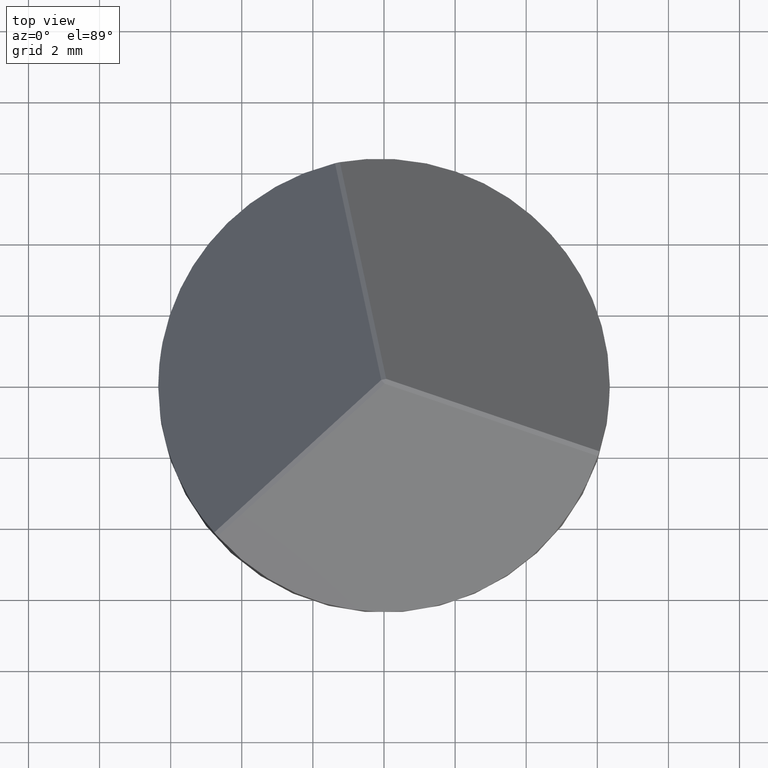
[diagram: clean part render]
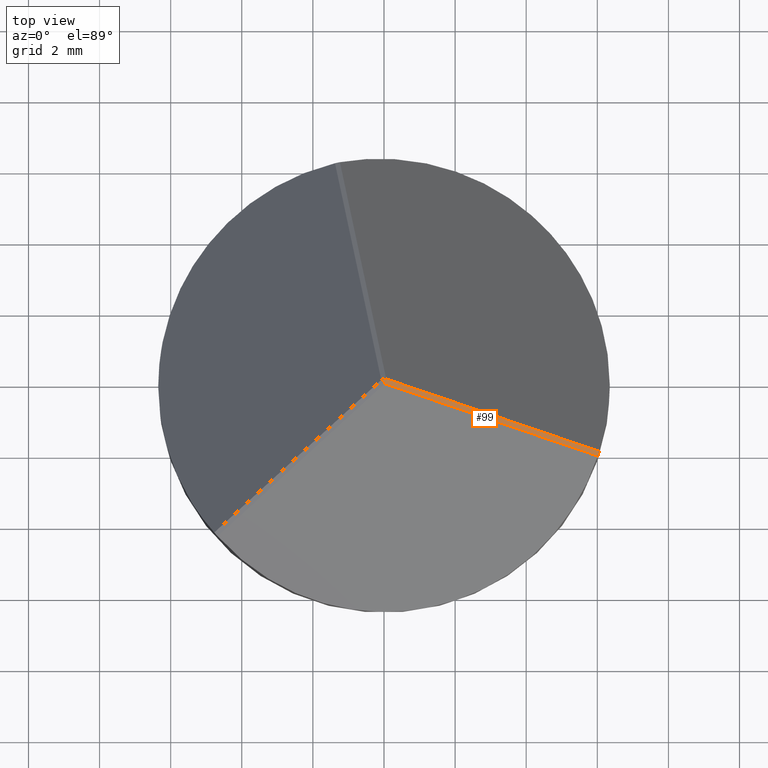
[diagram: same view with one face highlighted and labeled with its STEP entity id]
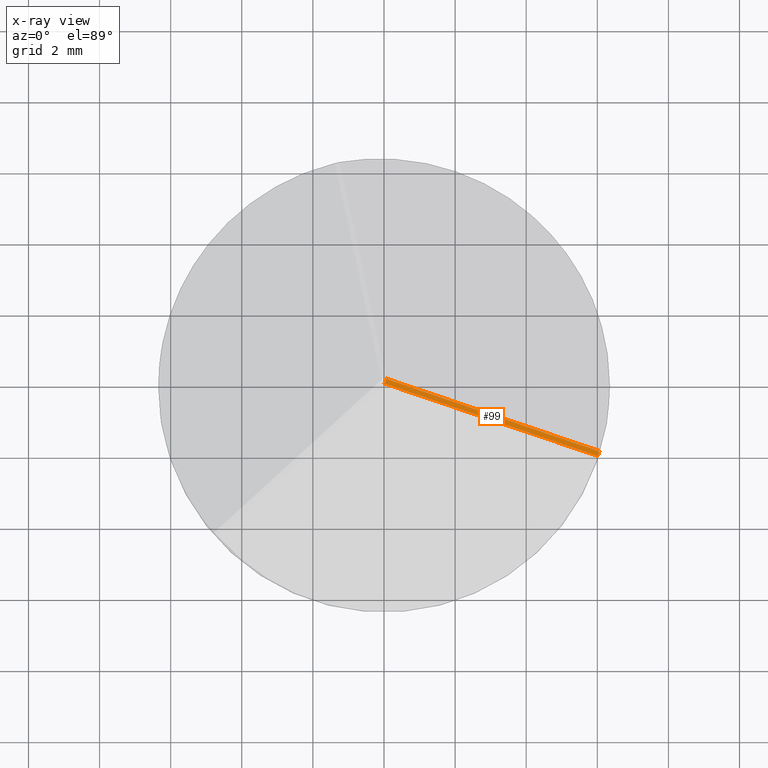
[diagram: x-ray of the same camera — body ghosted, the highlighted face saturated]
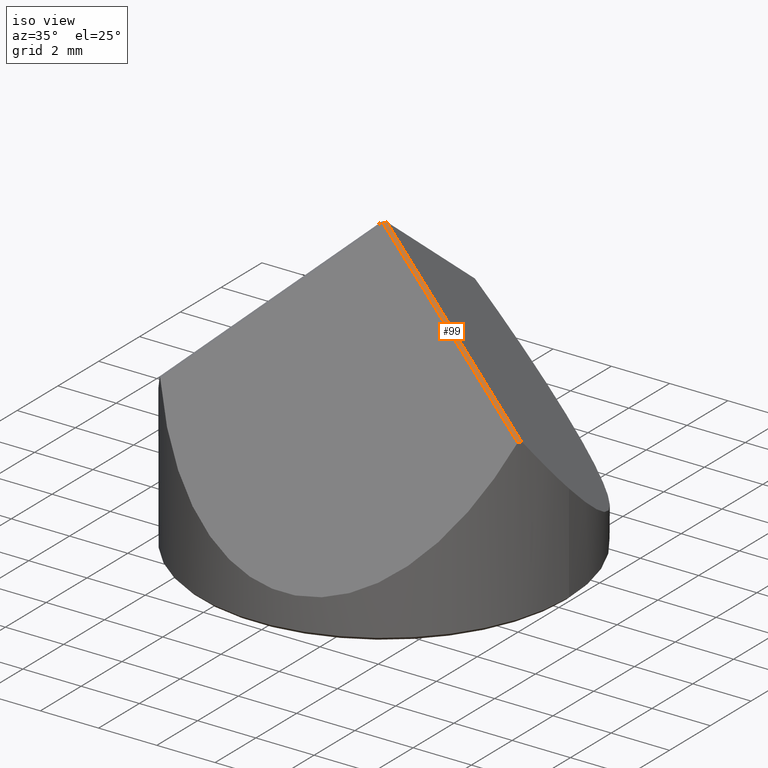
[diagram: same view with one face highlighted and labeled with its STEP entity id]
A machine part, top view. The second image highlights one B-rep face of the part: STEP entity #99.
The next image is the same camera in x-ray: the body ghosted, the highlighted face saturated — about 0% of this face is hidden behind the body in this view.
A second angle (iso view) of the same face is appended — the face is thin or edge-on in the first view.
In plain terms, the highlighted planar face has unit normal (-0.5488, 0.1794, -0.8165).
Its self-contained STEP definition (entity closure, byte-faithful):
#4 = VECTOR ( 'NONE', #290, 1000.000000000000114 ) ;
#17 = PLANE ( 'NONE',  #133 ) ;
#35 = LINE ( 'NONE', #82, #258 ) ;
#39 = DIRECTION ( 'NONE',  ( -0.5487787330234530359, 0.1793745676357337837, -0.8164965809277264785 ) ) ;
#48 = EDGE_LOOP ( 'NONE', ( #366, #252, #299, #281 ) ) ;
#59 = LINE ( 'NONE', #170, #4 ) ;
#82 = CARTESIAN_POINT ( 'NONE',  ( 4.235462525477922568, -1.310016928385307589, 6.269017013437426122 ) ) ;
#99 = ADVANCED_FACE ( 'NONE', ( #289 ), #17, .F. ) ;
#123 = CARTESIAN_POINT ( 'NONE',  ( 6.013412275601540458, -2.039944313858764513, 4.913675856748660919 ) ) ;
#133 = AXIS2_PLACEMENT_3D ( 'NONE', #320, #39, #266 ) ;
#135 = VERTEX_POINT ( 'NONE', #247 ) ;
#140 = CARTESIAN_POINT ( 'NONE',  ( 0.01683570817219707388, -0.07989509119469048737, 9.374658006696643398 ) ) ;
#141 = VECTOR ( 'NONE', #275, 1000.000000000000114 ) ;
#151 = VERTEX_POINT ( 'NONE', #182 ) ;
#154 = CARTESIAN_POINT ( 'NONE',  ( 4.191524909123932829, -1.444439716145159647, 6.269017013437427011 ) ) ;
#157 = CARTESIAN_POINT ( 'NONE',  ( 6.057349891955523091, -1.905521526098936880, 4.913675856748682236 ) ) ;
#164 = EDGE_CURVE ( 'NONE', #151, #256, #279, .T. ) ;
#170 = CARTESIAN_POINT ( 'NONE',  ( 0.03880451634919097198, -0.01268369731476594146, 9.374658006696643398 ) ) ;
#182 = CARTESIAN_POINT ( 'NONE',  ( 6.013412275601540458, -2.039944313858764513, 4.913675856748660919 ) ) ;
#206 = EDGE_CURVE ( 'NONE', #251, #151, #305, .T. ) ;
#247 = CARTESIAN_POINT ( 'NONE',  ( 0.06077332452618703501, 0.05452769656516021773, 9.374658006696643398 ) ) ;
#251 = VERTEX_POINT ( 'NONE', #261 ) ;
#252 = ORIENTED_EDGE ( 'NONE', *, *, #296, .F. ) ;
#256 = VERTEX_POINT ( 'NONE', #140 ) ;
#258 = VECTOR ( 'NONE', #321, 1000.000000000000000 ) ;
#261 = CARTESIAN_POINT ( 'NONE',  ( 6.057349891955523091, -1.905521526098936880, 4.913675856748682236 ) ) ;
#266 = DIRECTION ( 'NONE',  ( 0.7760903269836925134, -0.2536739462952641855, -0.5773502691896251759 ) ) ;
#275 = DIRECTION ( 'NONE',  ( -0.7760903269836925134, 0.2536739462952641855, 0.5773502691896250649 ) ) ;
#279 = LINE ( 'NONE', #154, #141 ) ;
#281 = ORIENTED_EDGE ( 'NONE', *, *, #164, .F. ) ;
#289 = FACE_OUTER_BOUND ( 'NONE', #48, .T. ) ;
#290 = DIRECTION ( 'NONE',  ( 0.3106858647307911836, 0.9505126477098979620, -0.000000000000000000 ) ) ;
#296 = EDGE_CURVE ( 'NONE', #135, #251, #35, .T. ) ;
#299 = ORIENTED_EDGE ( 'NONE', *, *, #333, .F. ) ;
#305 =( BOUNDED_CURVE ( )  B_SPLINE_CURVE ( 3, ( #157, #339, #307, #123 ),
 .UNSPECIFIED., .F., .F. ) 
 B_SPLINE_CURVE_WITH_KNOTS ( ( 4, 4 ),
 ( 6.272049537170586220, 6.294321077188580027 ),
 .UNSPECIFIED. ) 
 CURVE ( )  GEOMETRIC_REPRESENTATION_ITEM ( )  RATIONAL_B_SPLINE_CURVE ( ( 1.000000000000000000, 0.9999586653025819283, 0.9999586653025819283, 1.000000000000000000 ) ) 
 REPRESENTATION_ITEM ( '' )  );
#307 = CARTESIAN_POINT ( 'NONE',  ( 6.028556822411205829, -1.995300740465622225, 4.913304656743207488 ) ) ;
#320 = CARTESIAN_POINT ( 'NONE',  ( 4.235462525477922568, -1.310016928385308477, 6.269017013437426122 ) ) ;
#321 = DIRECTION ( 'NONE',  ( 0.7760903269836925134, -0.2536739462952641300, -0.5773502691896251759 ) ) ;
#333 = EDGE_CURVE ( 'NONE', #256, #135, #59, .T. ) ;
#339 = CARTESIAN_POINT ( 'NONE',  ( 6.043203299936918071, -1.950491292360698736, 4.913304656743207488 ) ) ;
#366 = ORIENTED_EDGE ( 'NONE', *, *, #206, .F. ) ;